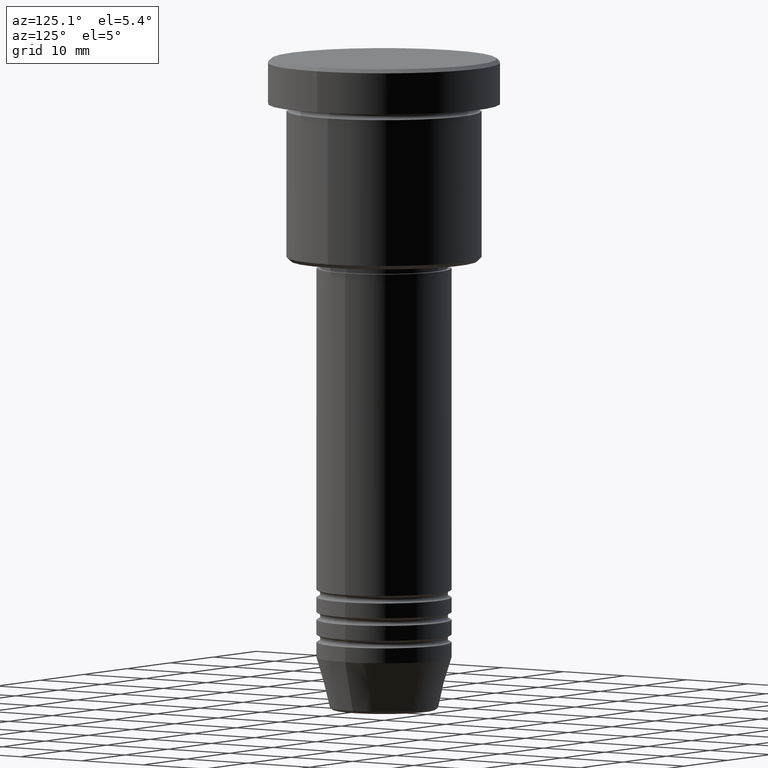
[diagram: clean part render]
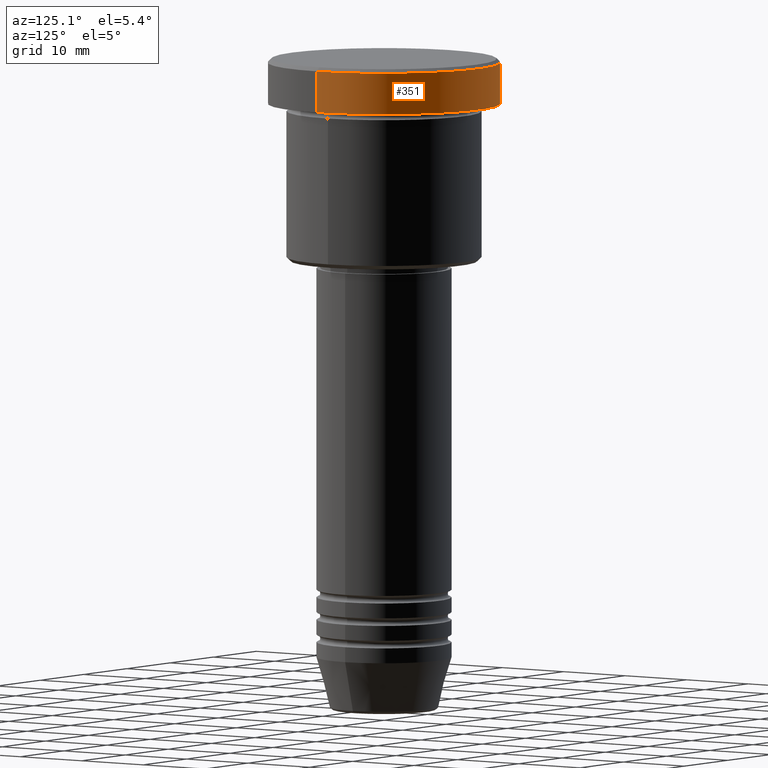
[diagram: same view with one face highlighted and labeled with its STEP entity id]
A machine part, auxiliary view. The second image highlights one B-rep face of the part: STEP entity #351.
In plain terms, the highlighted cylindrical surface (partial cylindrical patch) has radius 15.5 mm, axis along (-0, -0, 1).
Its self-contained STEP definition (entity closure, byte-faithful):
#43 = AXIS2_PLACEMENT_3D ( 'NONE', #283, #470, #1036 ) ;
#50 = ORIENTED_EDGE ( 'NONE', *, *, #553, .T. ) ;
#101 = CARTESIAN_POINT ( 'NONE',  ( -15.50000000000000000, 1.898202538678397557E-15, 0.000000000000000000 ) ) ;
#118 = VERTEX_POINT ( 'NONE', #732 ) ;
#137 = CARTESIAN_POINT ( 'NONE',  ( 0.000000000000000000, 0.000000000000000000, 0.000000000000000000 ) ) ;
#168 = CIRCLE ( 'NONE', #306, 15.50000000000000000 ) ;
#170 = VERTEX_POINT ( 'NONE', #552 ) ;
#225 = CYLINDRICAL_SURFACE ( 'NONE', #1037, 15.50000000000000000 ) ;
#233 = CARTESIAN_POINT ( 'NONE',  ( 0.000000000000000000, 0.000000000000000000, -0.4999999999999987232 ) ) ;
#269 = ORIENTED_EDGE ( 'NONE', *, *, #876, .T. ) ;
#283 = CARTESIAN_POINT ( 'NONE',  ( 0.000000000000000000, 0.000000000000000000, -5.999999999999995559 ) ) ;
#303 = EDGE_CURVE ( 'NONE', #996, #118, #686, .T. ) ;
#305 = FACE_OUTER_BOUND ( 'NONE', #1074, .T. ) ;
#306 = AXIS2_PLACEMENT_3D ( 'NONE', #233, #366, #775 ) ;
#330 = VECTOR ( 'NONE', #1105, 1000.000000000000000 ) ;
#351 = ADVANCED_FACE ( 'NONE', ( #305 ), #225, .T. ) ;
#366 = DIRECTION ( 'NONE',  ( 0.000000000000000000, 0.000000000000000000, -1.000000000000000000 ) ) ;
#409 = ORIENTED_EDGE ( 'NONE', *, *, #807, .T. ) ;
#424 = VERTEX_POINT ( 'NONE', #1043 ) ;
#470 = DIRECTION ( 'NONE',  ( -0.000000000000000000, -0.000000000000000000, 1.000000000000000000 ) ) ;
#552 = CARTESIAN_POINT ( 'NONE',  ( -15.50000000000000000, 1.898202538678397557E-15, -0.4999999999999987232 ) ) ;
#553 = EDGE_CURVE ( 'NONE', #170, #118, #168, .T. ) ;
#572 = ORIENTED_EDGE ( 'NONE', *, *, #303, .F. ) ;
#578 = VECTOR ( 'NONE', #880, 1000.000000000000000 ) ;
#613 = CARTESIAN_POINT ( 'NONE',  ( 15.50000000000000000, 0.000000000000000000, 0.000000000000000000 ) ) ;
#632 = DIRECTION ( 'NONE',  ( -0.000000000000000000, -0.000000000000000000, 1.000000000000000000 ) ) ;
#645 = LINE ( 'NONE', #101, #330 ) ;
#686 = LINE ( 'NONE', #613, #578 ) ;
#732 = CARTESIAN_POINT ( 'NONE',  ( 15.50000000000000000, 0.000000000000000000, -0.4999999999999987232 ) ) ;
#743 = CARTESIAN_POINT ( 'NONE',  ( 15.50000000000000000, 0.000000000000000000, -5.999999999999995559 ) ) ;
#775 = DIRECTION ( 'NONE',  ( 1.000000000000000000, 0.000000000000000000, 0.000000000000000000 ) ) ;
#807 = EDGE_CURVE ( 'NONE', #996, #424, #933, .T. ) ;
#876 = EDGE_CURVE ( 'NONE', #424, #170, #645, .T. ) ;
#880 = DIRECTION ( 'NONE',  ( -0.000000000000000000, -0.000000000000000000, 1.000000000000000000 ) ) ;
#933 = CIRCLE ( 'NONE', #43, 15.50000000000000000 ) ;
#996 = VERTEX_POINT ( 'NONE', #743 ) ;
#1036 = DIRECTION ( 'NONE',  ( 1.000000000000000000, 0.000000000000000000, 0.000000000000000000 ) ) ;
#1037 = AXIS2_PLACEMENT_3D ( 'NONE', #137, #632, #1177 ) ;
#1043 = CARTESIAN_POINT ( 'NONE',  ( -15.50000000000000000, 1.898202538678397557E-15, -5.999999999999995559 ) ) ;
#1074 = EDGE_LOOP ( 'NONE', ( #409, #269, #50, #572 ) ) ;
#1105 = DIRECTION ( 'NONE',  ( -0.000000000000000000, -0.000000000000000000, 1.000000000000000000 ) ) ;
#1177 = DIRECTION ( 'NONE',  ( 1.000000000000000000, 0.000000000000000000, 0.000000000000000000 ) ) ;